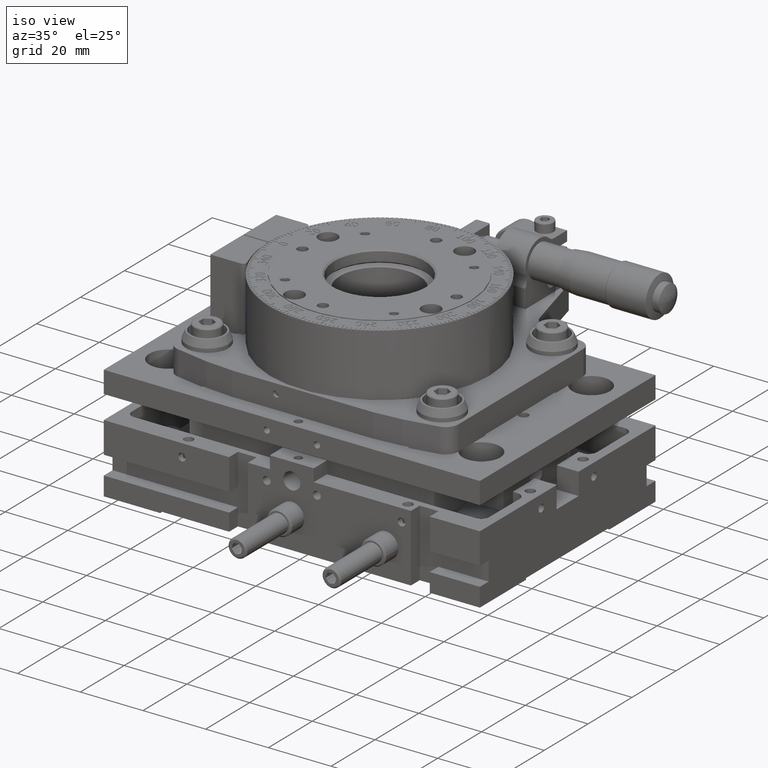
[diagram: clean part render]
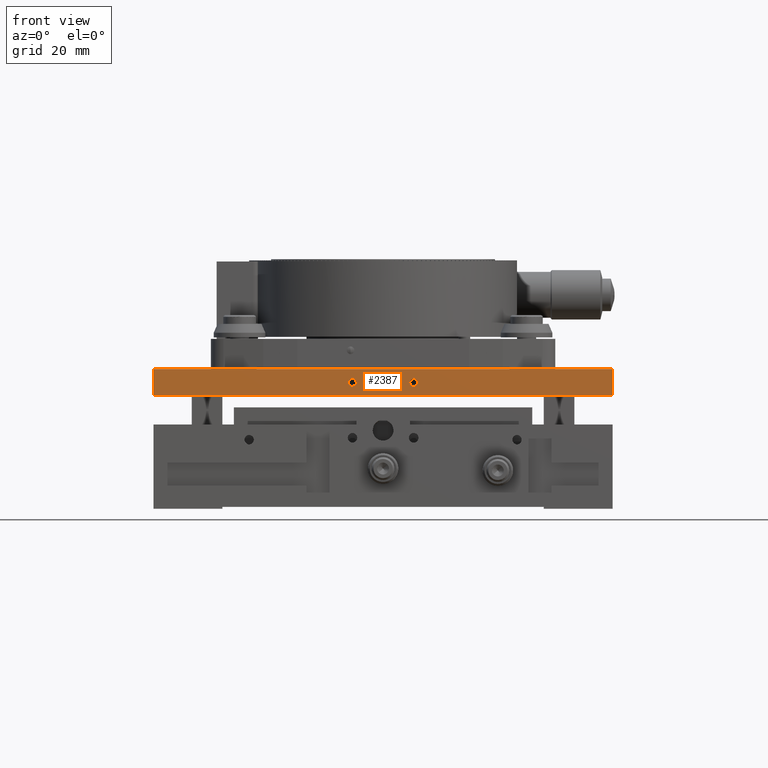
[diagram: tour spotlight — one face highlighted and labeled with its STEP entity id]
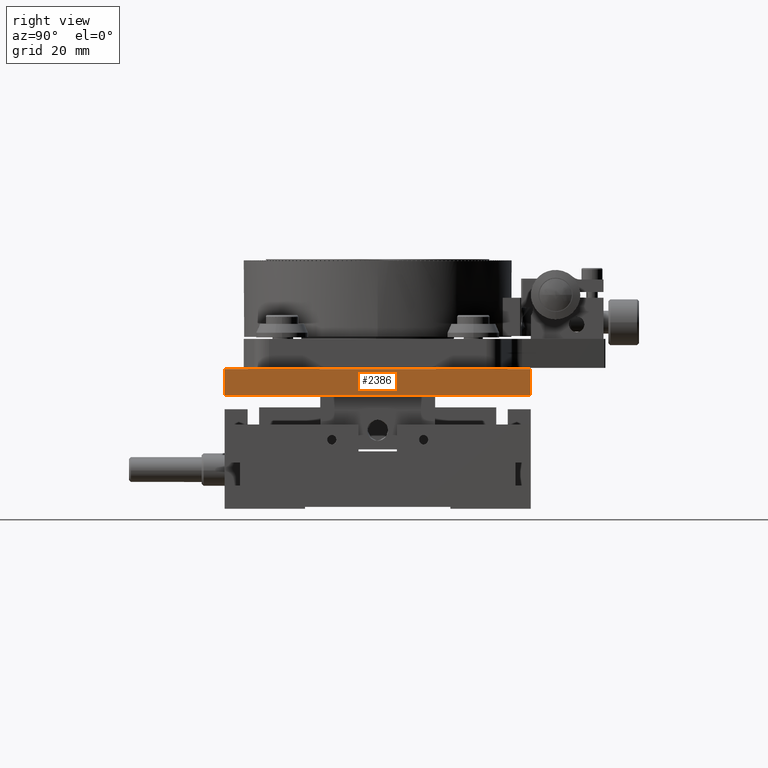
[diagram: tour spotlight — one face highlighted and labeled with its STEP entity id]
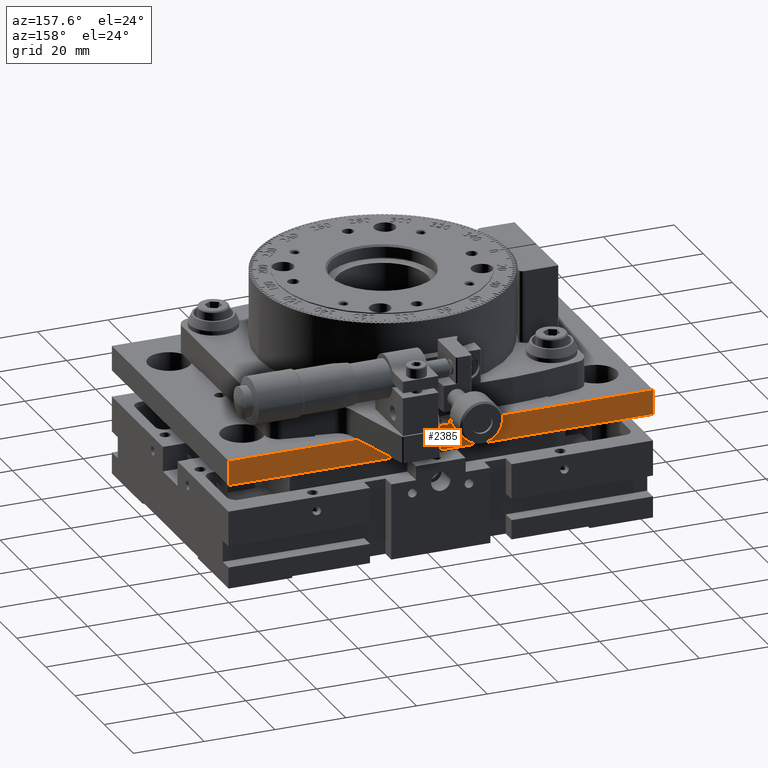
[diagram: tour spotlight — one face highlighted and labeled with its STEP entity id]
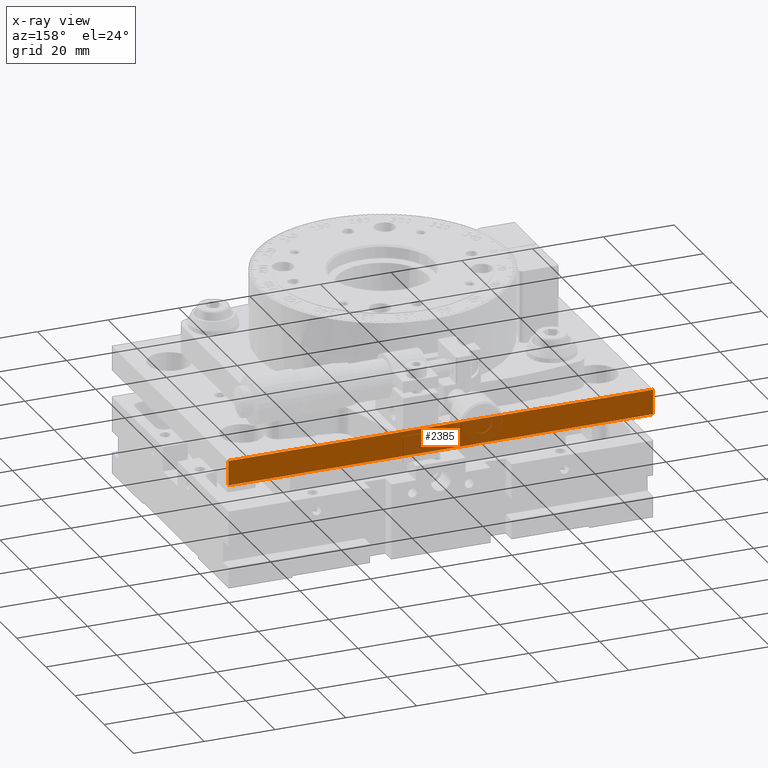
[diagram: x-ray of the same camera — body ghosted, this tour face saturated]
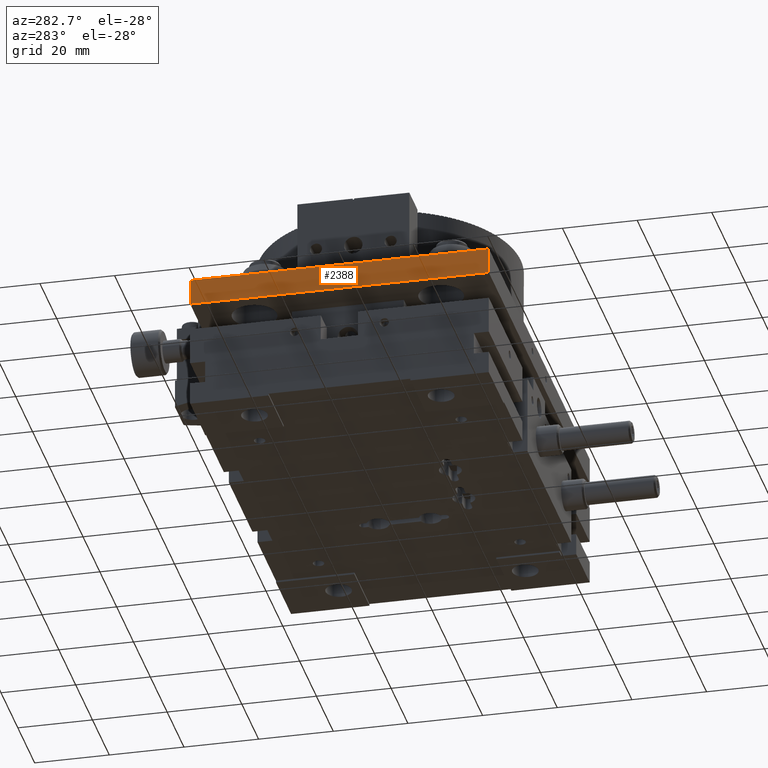
[diagram: tour spotlight — one face highlighted and labeled with its STEP entity id]
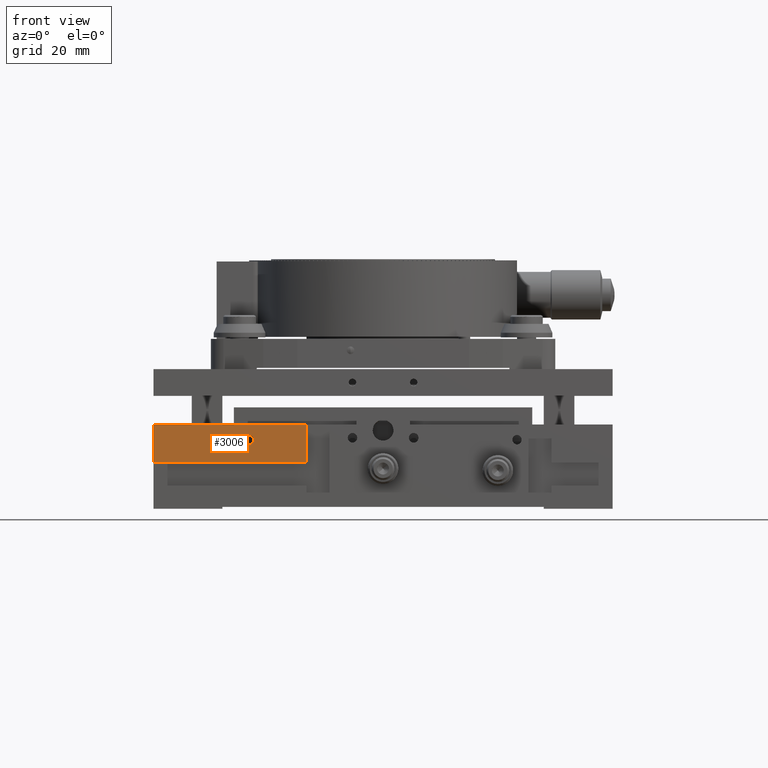
[diagram: tour spotlight — one face highlighted and labeled with its STEP entity id]
A machine part: a face-by-face anatomy tour. The part has 2803 B-rep faces; the first image is the clean iso view, then the 5 largest visible faces are spotlighted one at a time (largest first), each with its STEP entity span.

Face 1 — front view, entity #2387. In plain terms, the highlighted face is a freeform B-spline surface patch.
Definition (entity closure, byte-faithful):
#2387=ADVANCED_FACE('',(#5584,#3475,#3476),#103337,.T.);
#3475=FACE_BOUND('',#8564,.T.);
#3476=FACE_BOUND('',#8565,.T.);
#5584=FACE_OUTER_BOUND('',#8563,.T.);
#8563=EDGE_LOOP('',(#20360,#20361,#20362,#20363));
#8564=EDGE_LOOP('',(#20364,#20365));
#8565=EDGE_LOOP('',(#20366,#20367));
#20360=ORIENTED_EDGE('',*,*,#89469,.F.);
#20361=ORIENTED_EDGE('',*,*,#89563,.F.);
#20362=ORIENTED_EDGE('',*,*,#89564,.T.);
#20363=ORIENTED_EDGE('',*,*,#89565,.T.);
#20364=ORIENTED_EDGE('',*,*,#89566,.T.);
#20365=ORIENTED_EDGE('',*,*,#89567,.T.);
#20366=ORIENTED_EDGE('',*,*,#89568,.T.);
#20367=ORIENTED_EDGE('',*,*,#89569,.T.);
#39639=B_SPLINE_CURVE_WITH_KNOTS('',1,(#165711,#165712),.UNSPECIFIED.,.F.,
 .F.,(2,2),(-120.,0.),.UNSPECIFIED.);
#39640=B_SPLINE_CURVE_WITH_KNOTS('',1,(#165713,#165714),.UNSPECIFIED.,.F.,
 .F.,(2,2),(-120.,0.),.UNSPECIFIED.);
#39670=B_SPLINE_CURVE_WITH_KNOTS('',1,(#166573,#166574),.UNSPECIFIED.,.F.,
 .F.,(2,2),(0.,7.),.UNSPECIFIED.);
#39671=B_SPLINE_CURVE_WITH_KNOTS('',1,(#166575,#166576),.UNSPECIFIED.,.F.,
 .F.,(2,2),(0.,7.),.UNSPECIFIED.);
#39672=B_SPLINE_CURVE_WITH_KNOTS('',1,(#166577,#166578),.UNSPECIFIED.,.F.,
 .F.,(2,2),(-120.,0.),.UNSPECIFIED.);
#39673=B_SPLINE_CURVE_WITH_KNOTS('',1,(#166579,#166580),.UNSPECIFIED.,.F.,
 .F.,(2,2),(0.,7.),.UNSPECIFIED.);
#39674=B_SPLINE_CURVE_WITH_KNOTS('',1,(#166581,#166582),.UNSPECIFIED.,.F.,
 .F.,(2,2),(0.,120.),.UNSPECIFIED.);
#39675=B_SPLINE_CURVE_WITH_KNOTS('',1,(#166583,#166584),.UNSPECIFIED.,.F.,
 .F.,(2,2),(0.,120.),.UNSPECIFIED.);
#39676=B_SPLINE_CURVE_WITH_KNOTS('',1,(#166585,#166586),.UNSPECIFIED.,.F.,
 .F.,(2,2),(0.,7.),.UNSPECIFIED.);
#39677=B_SPLINE_CURVE_WITH_KNOTS('',1,(#166587,#166588),.UNSPECIFIED.,.F.,
 .F.,(2,2),(0.,7.),.UNSPECIFIED.);
#39679=B_SPLINE_CURVE_WITH_KNOTS('',1,(#166631,#166632),.UNSPECIFIED.,.F.,
 .F.,(2,2),(0.,7.),.UNSPECIFIED.);
#40194=B_SPLINE_CURVE_WITH_KNOTS('',1,(#168517,#168518),.UNSPECIFIED.,.F.,
 .F.,(2,2),(0.,3.14159265358979),.UNSPECIFIED.);
#40206=B_SPLINE_CURVE_WITH_KNOTS('',1,(#168569,#168570),.UNSPECIFIED.,.F.,
 .F.,(2,2),(0.,3.14159265358979),.UNSPECIFIED.);
#40250=B_SPLINE_CURVE_WITH_KNOTS('',1,(#168767,#168768),.UNSPECIFIED.,.F.,
 .F.,(2,2),(0.,120.),.UNSPECIFIED.);
#41524=B_SPLINE_CURVE_WITH_KNOTS('',1,(#174518,#174519),.UNSPECIFIED.,.F.,
 .F.,(2,2),(0.,3.14159265358979),.UNSPECIFIED.);
#41532=B_SPLINE_CURVE_WITH_KNOTS('',1,(#174542,#174543),.UNSPECIFIED.,.F.,
 .F.,(2,2),(0.,3.14159265358979),.UNSPECIFIED.);
#55667=PCURVE('',#103334,#71260);
#55764=PCURVE('',#103336,#71357);
#55765=PCURVE('',#103337,#71358);
#55766=PCURVE('',#103337,#71359);
#55767=PCURVE('',#103337,#71360);
#55768=PCURVE('',#103337,#71361);
#55769=PCURVE('',#103337,#71362);
#55770=PCURVE('',#103337,#71363);
#55771=PCURVE('',#103337,#71364);
#55772=PCURVE('',#103337,#71365);
#55774=PCURVE('',#103338,#71367);
#56187=PCURVE('',#101173,#71780);
#56197=PCURVE('',#101175,#71790);
#56243=PCURVE('',#103356,#71836);
#57521=PCURVE('',#101308,#73114);
#57529=PCURVE('',#101310,#73122);
#71260=DEFINITIONAL_REPRESENTATION('',(#39640),#197026);
#71357=DEFINITIONAL_REPRESENTATION('',(#39671),#197026);
#71358=DEFINITIONAL_REPRESENTATION('',(#39672),#197026);
#71359=DEFINITIONAL_REPRESENTATION('',(#39673),#197026);
#71360=DEFINITIONAL_REPRESENTATION('',(#39675),#197026);
#71361=DEFINITIONAL_REPRESENTATION('',(#39677),#197026);
#71362=DEFINITIONAL_REPRESENTATION('',(#93704),#197026);
#71363=DEFINITIONAL_REPRESENTATION('',(#93706),#197026);
#71364=DEFINITIONAL_REPRESENTATION('',(#93708),#197026);
#71365=DEFINITIONAL_REPRESENTATION('',(#93710),#197026);
#71367=DEFINITIONAL_REPRESENTATION('',(#39679),#197026);
#71780=DEFINITIONAL_REPRESENTATION('',(#40194),#197026);
#71790=DEFINITIONAL_REPRESENTATION('',(#40206),#197026);
#71836=DEFINITIONAL_REPRESENTATION('',(#40250),#197026);
#73114=DEFINITIONAL_REPRESENTATION('',(#41524),#197026);
#73122=DEFINITIONAL_REPRESENTATION('',(#41532),#197026);
#81611=SURFACE_CURVE('',#39639,(#55667,#55765),.PCURVE_S1.);
#81705=SURFACE_CURVE('',#39670,(#55764,#55766),.PCURVE_S1.);
#81706=SURFACE_CURVE('',#39674,(#55767,#56243),.PCURVE_S1.);
#81707=SURFACE_CURVE('',#39676,(#55768,#55774),.PCURVE_S1.);
#81708=SURFACE_CURVE('',#93703,(#55769,#57529),.PCURVE_S1.);
#81709=SURFACE_CURVE('',#93705,(#55770,#56197),.PCURVE_S1.);
#81710=SURFACE_CURVE('',#93707,(#55771,#57521),.PCURVE_S1.);
#81711=SURFACE_CURVE('',#93709,(#55772,#56187),.PCURVE_S1.);
#89469=EDGE_CURVE('',#99207,#99205,#81611,.T.);
#89563=EDGE_CURVE('',#99298,#99207,#81705,.T.);
#89564=EDGE_CURVE('',#99298,#99299,#81706,.T.);
#89565=EDGE_CURVE('',#99299,#99205,#81707,.T.);
#89566=EDGE_CURVE('',#99301,#99300,#81708,.T.);
#89567=EDGE_CURVE('',#99300,#99301,#81709,.T.);
#89568=EDGE_CURVE('',#99303,#99302,#81710,.T.);
#89569=EDGE_CURVE('',#99302,#99303,#81711,.T.);
#93703=(
BOUNDED_CURVE()
B_SPLINE_CURVE(2,(#166589,#166590,#166591,#166592,#166593),
 .UNSPECIFIED.,.F.,.F.)
B_SPLINE_CURVE_WITH_KNOTS((3,2,3),(0.,1.5707963267949,3.14159265358979),
 .UNSPECIFIED.)
CURVE()
GEOMETRIC_REPRESENTATION_ITEM()
RATIONAL_B_SPLINE_CURVE((1.,0.707106781186548,1.,0.707106781186548,1.))
REPRESENTATION_ITEM('')
);
#93704=(
BOUNDED_CURVE()
B_SPLINE_CURVE(2,(#166594,#166595,#166596,#166597,#166598),
 .UNSPECIFIED.,.F.,.F.)
B_SPLINE_CURVE_WITH_KNOTS((3,2,3),(0.,1.5707963267949,3.14159265358979),
 .UNSPECIFIED.)
CURVE()
GEOMETRIC_REPRESENTATION_ITEM()
RATIONAL_B_SPLINE_CURVE((1.,0.707106781186548,1.,0.707106781186548,1.))
REPRESENTATION_ITEM('')
);
#93705=(
BOUNDED_CURVE()
B_SPLINE_CURVE(2,(#166599,#166600,#166601,#166602,#166603),
 .UNSPECIFIED.,.F.,.F.)
B_SPLINE_CURVE_WITH_KNOTS((3,2,3),(0.,1.5707963267949,3.14159265358979),
 .UNSPECIFIED.)
CURVE()
GEOMETRIC_REPRESENTATION_ITEM()
RATIONAL_B_SPLINE_CURVE((1.,0.707106781186548,1.,0.707106781186548,1.))
REPRESENTATION_ITEM('')
);
#93706=(
BOUNDED_CURVE()
B_SPLINE_CURVE(2,(#166604,#166605,#166606,#166607,#166608),
 .UNSPECIFIED.,.F.,.F.)
B_SPLINE_CURVE_WITH_KNOTS((3,2,3),(0.,1.5707963267949,3.14159265358979),
 .UNSPECIFIED.)
CURVE()
GEOMETRIC_REPRESENTATION_ITEM()
RATIONAL_B_SPLINE_CURVE((1.,0.707106781186548,1.,0.707106781186548,1.))
REPRESENTATION_ITEM('')
);
#93707=(
BOUNDED_CURVE()
B_SPLINE_CURVE(2,(#166609,#166610,#166611,#166612,#166613),
 .UNSPECIFIED.,.F.,.F.)
B_SPLINE_CURVE_WITH_KNOTS((3,2,3),(0.,1.5707963267949,3.14159265358979),
 .UNSPECIFIED.)
CURVE()
GEOMETRIC_REPRESENTATION_ITEM()
RATIONAL_B_SPLINE_CURVE((1.,0.707106781186548,1.,0.707106781186548,1.))
REPRESENTATION_ITEM('')
);
#93708=(
BOUNDED_CURVE()
B_SPLINE_CURVE(2,(#166614,#166615,#166616,#166617,#166618),
 .UNSPECIFIED.,.F.,.F.)
B_SPLINE_CURVE_WITH_KNOTS((3,2,3),(0.,1.5707963267949,3.14159265358979),
 .UNSPECIFIED.)
CURVE()
GEOMETRIC_REPRESENTATION_ITEM()
RATIONAL_B_SPLINE_CURVE((1.,0.707106781186548,1.,0.707106781186548,1.))
REPRESENTATION_ITEM('')
);
#93709=(
BOUNDED_CURVE()
B_SPLINE_CURVE(2,(#166619,#166620,#166621,#166622,#166623),
 .UNSPECIFIED.,.F.,.F.)
B_SPLINE_CURVE_WITH_KNOTS((3,2,3),(0.,1.5707963267949,3.14159265358979),
 .UNSPECIFIED.)
CURVE()
GEOMETRIC_REPRESENTATION_ITEM()
RATIONAL_B_SPLINE_CURVE((1.,0.707106781186548,1.,0.707106781186548,1.))
REPRESENTATION_ITEM('')
);
#93710=(
BOUNDED_CURVE()
B_SPLINE_CURVE(2,(#166624,#166625,#166626,#166627,#166628),
 .UNSPECIFIED.,.F.,.F.)
B_SPLINE_CURVE_WITH_KNOTS((3,2,3),(0.,1.5707963267949,3.14159265358979),
 .UNSPECIFIED.)
CURVE()
GEOMETRIC_REPRESENTATION_ITEM()
RATIONAL_B_SPLINE_CURVE((1.,0.707106781186548,1.,0.707106781186548,1.))
REPRESENTATION_ITEM('')
);
#99205=VERTEX_POINT('',#164651);
#99207=VERTEX_POINT('',#164653);
#99298=VERTEX_POINT('',#164744);
#99299=VERTEX_POINT('',#164745);
#99300=VERTEX_POINT('',#164746);
#99301=VERTEX_POINT('',#164747);
#99302=VERTEX_POINT('',#164748);
#99303=VERTEX_POINT('',#164749);
#101173=(
BOUNDED_SURFACE()
B_SPLINE_SURFACE(1,2,((#161647,#161648,#161649,#161650,#161651),(#161652,
#161653,#161654,#161655,#161656)),.UNSPECIFIED.,.F.,.F.,.F.)
B_SPLINE_SURFACE_WITH_KNOTS((2,2),(3,2,3),(0.,23.2458874503046),(0.,1.5707963267949,
3.14159265358979),.UNSPECIFIED.)
GEOMETRIC_REPRESENTATION_ITEM()
RATIONAL_B_SPLINE_SURFACE(((1.,0.707106781186548,1.,0.707106781186548,1.),
(1.,0.707106781186548,1.,0.707106781186548,1.)))
REPRESENTATION_ITEM('')
SURFACE()
);
#101175=(
BOUNDED_SURFACE()
B_SPLINE_SURFACE(1,2,((#161671,#161672,#161673,#161674,#161675),(#161676,
#161677,#161678,#161679,#161680)),.UNSPECIFIED.,.F.,.F.,.F.)
B_SPLINE_SURFACE_WITH_KNOTS((2,2),(3,2,3),(0.,23.2458874503046),(0.,1.5707963267949,
3.14159265358979),.UNSPECIFIED.)
GEOMETRIC_REPRESENTATION_ITEM()
RATIONAL_B_SPLINE_SURFACE(((1.,0.707106781186548,1.,0.707106781186548,1.),
(1.,0.707106781186548,1.,0.707106781186548,1.)))
REPRESENTATION_ITEM('')
SURFACE()
);
#101308=(
BOUNDED_SURFACE()
B_SPLINE_SURFACE(1,2,((#164278,#164279,#164280,#164281,#164282),(#164283,
#164284,#164285,#164286,#164287)),.UNSPECIFIED.,.F.,.F.,.F.)
B_SPLINE_SURFACE_WITH_KNOTS((2,2),(3,2,3),(0.,23.2458874503046),(3.14159265358979,
4.71238898038469,6.28318530717959),.UNSPECIFIED.)
GEOMETRIC_REPRESENTATION_ITEM()
RATIONAL_B_SPLINE_SURFACE(((1.,0.707106781186548,1.,0.707106781186548,1.),
(1.,0.707106781186548,1.,0.707106781186548,1.)))
REPRESENTATION_ITEM('')
SURFACE()
);
#101310=(
BOUNDED_SURFACE()
B_SPLINE_SURFACE(1,2,((#164298,#164299,#164300,#164301,#164302),(#164303,
#164304,#164305,#164306,#164307)),.UNSPECIFIED.,.F.,.F.,.F.)
B_SPLINE_SURFACE_WITH_KNOTS((2,2),(3,2,3),(0.,23.2458874503046),(3.14159265358979,
4.71238898038469,6.28318530717959),.UNSPECIFIED.)
GEOMETRIC_REPRESENTATION_ITEM()
RATIONAL_B_SPLINE_SURFACE(((1.,0.707106781186548,1.,0.707106781186548,1.),
(1.,0.707106781186548,1.,0.707106781186548,1.)))
REPRESENTATION_ITEM('')
SURFACE()
);
#103334=B_SPLINE_SURFACE_WITH_KNOTS('',1,1,((#160071,#160072),(#160073,
#160074)),.UNSPECIFIED.,.F.,.F.,.F.,(2,2),(2,2),(-48.1200000000001,48.1200000000002),
(-72.1200000000001,72.12),.UNSPECIFIED.);
#103336=B_SPLINE_SURFACE_WITH_KNOTS('',1,1,((#160079,#160080),(#160081,
#160082)),.UNSPECIFIED.,.F.,.F.,.F.,(2,2),(2,2),(-0.820000000000002,7.82),
(-8.12,88.1200000000001),.UNSPECIFIED.);
#103337=B_SPLINE_SURFACE_WITH_KNOTS('',1,1,((#160083,#160084),(#160085,
#160086)),.UNSPECIFIED.,.F.,.F.,.F.,(2,2),(2,2),(-0.820000000000115,7.82000000000006),
(-12.12,132.12),.UNSPECIFIED.);
#103338=B_SPLINE_SURFACE_WITH_KNOTS('',1,1,((#160087,#160088),(#160089,
#160090)),.UNSPECIFIED.,.F.,.F.,.F.,(2,2),(2,2),(-7.82,0.820000000000002),
(-88.12,8.12),.UNSPECIFIED.);
#103356=B_SPLINE_SURFACE_WITH_KNOTS('',1,1,((#161783,#161784),(#161785,
#161786)),.UNSPECIFIED.,.F.,.F.,.F.,(2,2),(2,2),(-72.1200000000001,72.12),
(-48.1200000000001,48.1200000000002),.UNSPECIFIED.);
#160071=CARTESIAN_POINT('',(-12.1200000000001,-109.172822561578,28.9999999999999));
#160072=CARTESIAN_POINT('',(132.12,-109.172822561578,28.9999999999999));
#160073=CARTESIAN_POINT('',(-12.1200000000001,-12.9328225615779,28.9999999999999));
#160074=CARTESIAN_POINT('',(132.12,-12.9328225615778,28.9999999999999));
#160079=CARTESIAN_POINT('',(120.,-109.172822561578,36.82));
#160080=CARTESIAN_POINT('',(120.,-12.9328225615779,36.82));
#160081=CARTESIAN_POINT('',(120.,-109.172822561578,28.18));
#160082=CARTESIAN_POINT('',(120.,-12.9328225615779,28.18));
#160083=CARTESIAN_POINT('',(-12.12,-101.052822561578,36.82));
#160084=CARTESIAN_POINT('',(132.12,-101.052822561578,36.8200000000001));
#160085=CARTESIAN_POINT('',(-12.12,-101.052822561578,28.1799999999998));
#160086=CARTESIAN_POINT('',(132.12,-101.052822561578,28.1799999999999));
#160087=CARTESIAN_POINT('',(8.71297707701195E-15,-109.172822561578,28.1799999999999));
#160088=CARTESIAN_POINT('',(-6.44110297726557E-14,-12.932822561578,28.1799999999999));
#160089=CARTESIAN_POINT('',(5.6473020796724E-15,-109.172822561578,36.8199999999999));
#160090=CARTESIAN_POINT('',(-6.74767047699953E-14,-12.932822561578,36.8199999999999));
#161647=CARTESIAN_POINT('',(67.,-79.8440923987988,32.4999999999999));
#161648=CARTESIAN_POINT('',(67.,-79.8440923987988,31.4999999999999));
#161649=CARTESIAN_POINT('',(68.,-79.8440923987988,31.4999999999999));
#161650=CARTESIAN_POINT('',(69.,-79.8440923987988,31.4999999999999));
#161651=CARTESIAN_POINT('',(69.,-79.8440923987988,32.4999999999999));
#161652=CARTESIAN_POINT('',(67.,-103.089979849103,32.4999999999999));
#161653=CARTESIAN_POINT('',(67.,-103.089979849103,31.4999999999999));
#161654=CARTESIAN_POINT('',(68.,-103.089979849103,31.4999999999999));
#161655=CARTESIAN_POINT('',(69.,-103.089979849103,31.4999999999999));
#161656=CARTESIAN_POINT('',(69.,-103.089979849103,32.4999999999999));
#161671=CARTESIAN_POINT('',(51.,-79.8440923987988,32.4999999999999));
#161672=CARTESIAN_POINT('',(51.,-79.8440923987988,31.4999999999999));
#161673=CARTESIAN_POINT('',(52.,-79.8440923987988,31.4999999999999));
#161674=CARTESIAN_POINT('',(53.,-79.8440923987988,31.4999999999999));
#161675=CARTESIAN_POINT('',(53.,-79.8440923987988,32.4999999999999));
#161676=CARTESIAN_POINT('',(51.,-103.089979849103,32.4999999999999));
#161677=CARTESIAN_POINT('',(51.,-103.089979849103,31.4999999999999));
#161678=CARTESIAN_POINT('',(52.,-103.089979849103,31.4999999999999));
#161679=CARTESIAN_POINT('',(53.,-103.089979849103,31.4999999999999));
#161680=CARTESIAN_POINT('',(53.,-103.089979849103,32.4999999999999));
#161783=CARTESIAN_POINT('',(-12.1200000000001,-109.172822561578,35.9999999999999));
#161784=CARTESIAN_POINT('',(-12.1200000000001,-12.9328225615779,35.9999999999999));
#161785=CARTESIAN_POINT('',(132.12,-109.172822561578,35.9999999999999));
#161786=CARTESIAN_POINT('',(132.12,-12.9328225615778,35.9999999999999));
#164278=CARTESIAN_POINT('',(69.,-79.8440923987988,32.4999999999999));
#164279=CARTESIAN_POINT('',(69.,-79.8440923987988,33.4999999999999));
#164280=CARTESIAN_POINT('',(68.,-79.8440923987988,33.4999999999999));
#164281=CARTESIAN_POINT('',(67.,-79.8440923987988,33.4999999999999));
#164282=CARTESIAN_POINT('',(67.,-79.8440923987988,32.4999999999999));
#164283=CARTESIAN_POINT('',(69.,-103.089979849103,32.4999999999999));
#164284=CARTESIAN_POINT('',(69.,-103.089979849103,33.4999999999999));
#164285=CARTESIAN_POINT('',(68.,-103.089979849103,33.4999999999999));
#164286=CARTESIAN_POINT('',(67.,-103.089979849103,33.4999999999999));
#164287=CARTESIAN_POINT('',(67.,-103.089979849103,32.4999999999999));
#164298=CARTESIAN_POINT('',(53.,-79.8440923987988,32.4999999999999));
#164299=CARTESIAN_POINT('',(53.,-79.8440923987988,33.4999999999999));
#164300=CARTESIAN_POINT('',(52.,-79.8440923987988,33.4999999999999));
#164301=CARTESIAN_POINT('',(51.,-79.8440923987988,33.4999999999999));
#164302=CARTESIAN_POINT('',(51.,-79.8440923987988,32.4999999999999));
#164303=CARTESIAN_POINT('',(53.,-103.089979849103,32.4999999999999));
#164304=CARTESIAN_POINT('',(53.,-103.089979849103,33.4999999999999));
#164305=CARTESIAN_POINT('',(52.,-103.089979849103,33.4999999999999));
#164306=CARTESIAN_POINT('',(51.,-103.089979849103,33.4999999999999));
#164307=CARTESIAN_POINT('',(51.,-103.089979849103,32.4999999999999));
#164651=CARTESIAN_POINT('',(4.37534301814723E-15,-101.052822561578,28.9999999999999));
#164653=CARTESIAN_POINT('',(120.,-101.052822561578,29.));
#164744=CARTESIAN_POINT('',(120.,-101.052822561578,36.));
#164745=CARTESIAN_POINT('',(-1.18953004206581E-15,-101.052822561578,35.9999999999999));
#164746=CARTESIAN_POINT('',(53.,-101.052822561578,32.4999999999999));
#164747=CARTESIAN_POINT('',(51.,-101.052822561578,32.4999999999999));
#164748=CARTESIAN_POINT('',(69.,-101.052822561578,32.4999999999999));
#164749=CARTESIAN_POINT('',(67.,-101.052822561578,32.4999999999999));
#165711=CARTESIAN_POINT('',(120.,-101.052822561578,29.));
#165712=CARTESIAN_POINT('',(4.37534301814723E-15,-101.052822561578,28.9999999999999));
#165713=CARTESIAN_POINT('',(-40.,60.));
#165714=CARTESIAN_POINT('',(-40.,-60.));
#166573=CARTESIAN_POINT('',(120.,-101.052822561578,36.));
#166574=CARTESIAN_POINT('',(120.,-101.052822561578,29.));
#166575=CARTESIAN_POINT('',(0.,0.));
#166576=CARTESIAN_POINT('',(7.,6.80591192663364E-31));
#166577=CARTESIAN_POINT('',(6.99999999999994,120.));
#166578=CARTESIAN_POINT('',(7.,-2.76101316827354E-30));
#166579=CARTESIAN_POINT('',(-5.68971635989203E-14,120.));
#166580=CARTESIAN_POINT('',(6.99999999999994,120.));
#166581=CARTESIAN_POINT('',(120.,-101.052822561578,36.));
#166582=CARTESIAN_POINT('',(-1.18953004206581E-15,-101.052822561578,35.9999999999999));
#166583=CARTESIAN_POINT('',(-5.68971635989203E-14,120.));
#166584=CARTESIAN_POINT('',(2.44918085570065E-46,6.90253292068385E-31));
#166585=CARTESIAN_POINT('',(-1.18953004206581E-15,-101.052822561578,35.9999999999999));
#166586=CARTESIAN_POINT('',(4.37534301814723E-15,-101.052822561578,28.9999999999999));
#166587=CARTESIAN_POINT('',(2.44918085570065E-46,6.90253292068385E-31));
#166588=CARTESIAN_POINT('',(7.,-2.76101316827354E-30));
#166589=CARTESIAN_POINT('',(51.,-101.052822561578,32.4999999999999));
#166590=CARTESIAN_POINT('',(51.,-101.052822561578,33.4999999999999));
#166591=CARTESIAN_POINT('',(52.,-101.052822561578,33.4999999999999));
#166592=CARTESIAN_POINT('',(53.,-101.052822561578,33.4999999999999));
#166593=CARTESIAN_POINT('',(53.,-101.052822561578,32.4999999999999));
#166594=CARTESIAN_POINT('',(3.50000000000002,51.));
#166595=CARTESIAN_POINT('',(2.50000000000002,51.));
#166596=CARTESIAN_POINT('',(2.50000000000002,52.));
#166597=CARTESIAN_POINT('',(2.50000000000002,53.));
#166598=CARTESIAN_POINT('',(3.50000000000002,53.));
#166599=CARTESIAN_POINT('',(53.,-101.052822561578,32.4999999999999));
#166600=CARTESIAN_POINT('',(53.,-101.052822561578,31.4999999999999));
#166601=CARTESIAN_POINT('',(52.,-101.052822561578,31.4999999999999));
#166602=CARTESIAN_POINT('',(51.,-101.052822561578,31.4999999999999));
#166603=CARTESIAN_POINT('',(51.,-101.052822561578,32.4999999999999));
#166604=CARTESIAN_POINT('',(3.50000000000002,53.));
#166605=CARTESIAN_POINT('',(4.50000000000002,53.));
#166606=CARTESIAN_POINT('',(4.50000000000002,52.));
#166607=CARTESIAN_POINT('',(4.50000000000002,51.));
#166608=CARTESIAN_POINT('',(3.50000000000002,51.));
#166609=CARTESIAN_POINT('',(67.,-101.052822561578,32.4999999999999));
#166610=CARTESIAN_POINT('',(67.,-101.052822561578,33.4999999999999));
#166611=CARTESIAN_POINT('',(68.,-101.052822561578,33.4999999999999));
#166612=CARTESIAN_POINT('',(69.,-101.052822561578,33.4999999999999));
#166613=CARTESIAN_POINT('',(69.,-101.052822561578,32.4999999999999));
#166614=CARTESIAN_POINT('',(3.50000000000002,67.));
#166615=CARTESIAN_POINT('',(2.50000000000003,67.));
#166616=CARTESIAN_POINT('',(2.50000000000002,68.));
#166617=CARTESIAN_POINT('',(2.50000000000003,69.));
#166618=CARTESIAN_POINT('',(3.50000000000002,69.));
#166619=CARTESIAN_POINT('',(69.,-101.052822561578,32.4999999999999));
#166620=CARTESIAN_POINT('',(69.,-101.052822561578,31.4999999999999));
#166621=CARTESIAN_POINT('',(68.,-101.052822561578,31.4999999999999));
#166622=CARTESIAN_POINT('',(67.,-101.052822561578,31.4999999999999));
#166623=CARTESIAN_POINT('',(67.,-101.052822561578,32.4999999999999));
#166624=CARTESIAN_POINT('',(3.50000000000002,69.));
#166625=CARTESIAN_POINT('',(4.50000000000003,69.));
#166626=CARTESIAN_POINT('',(4.50000000000002,68.));
#166627=CARTESIAN_POINT('',(4.50000000000003,67.));
#166628=CARTESIAN_POINT('',(3.50000000000002,67.));
#166631=CARTESIAN_POINT('',(-7.77818505900987E-30,-80.));
#166632=CARTESIAN_POINT('',(-7.,-80.));
#168517=CARTESIAN_POINT('',(21.2087301627792,3.14159265358979));
#168518=CARTESIAN_POINT('',(21.2087301627792,0.));
#168569=CARTESIAN_POINT('',(21.2087301627792,3.14159265358979));
#168570=CARTESIAN_POINT('',(21.2087301627792,0.));
#168767=CARTESIAN_POINT('',(60.,-40.));
#168768=CARTESIAN_POINT('',(-60.,-40.));
#174518=CARTESIAN_POINT('',(21.2087301627792,6.28318530717959));
#174519=CARTESIAN_POINT('',(21.2087301627792,3.14159265358979));
#174542=CARTESIAN_POINT('',(21.2087301627792,6.28318530717959));
#174543=CARTESIAN_POINT('',(21.2087301627792,3.14159265358979));
#197026=(
GEOMETRIC_REPRESENTATION_CONTEXT(2)
PARAMETRIC_REPRESENTATION_CONTEXT()
REPRESENTATION_CONTEXT('pspace','')
);

Face 2 — right view, entity #2386. In plain terms, the highlighted face is a freeform B-spline surface patch.
Definition (entity closure, byte-faithful):
#2386=ADVANCED_FACE('',(#5583),#103336,.T.);
#5583=FACE_OUTER_BOUND('',#8562,.T.);
#8562=EDGE_LOOP('',(#20356,#20357,#20358,#20359));
#20356=ORIENTED_EDGE('',*,*,#89468,.F.);
#20357=ORIENTED_EDGE('',*,*,#89561,.F.);
#20358=ORIENTED_EDGE('',*,*,#89562,.T.);
#20359=ORIENTED_EDGE('',*,*,#89563,.T.);
#39637=B_SPLINE_CURVE_WITH_KNOTS('',1,(#165707,#165708),.UNSPECIFIED.,.F.,
 .F.,(2,2),(-80.0000000000001,0.),.UNSPECIFIED.);
#39638=B_SPLINE_CURVE_WITH_KNOTS('',1,(#165709,#165710),.UNSPECIFIED.,.F.,
 .F.,(2,2),(-80.0000000000001,0.),.UNSPECIFIED.);
#39664=B_SPLINE_CURVE_WITH_KNOTS('',1,(#166561,#166562),.UNSPECIFIED.,.F.,
 .F.,(2,2),(0.,7.),.UNSPECIFIED.);
#39665=B_SPLINE_CURVE_WITH_KNOTS('',1,(#166563,#166564),.UNSPECIFIED.,.F.,
 .F.,(2,2),(0.,7.),.UNSPECIFIED.);
#39666=B_SPLINE_CURVE_WITH_KNOTS('',1,(#166565,#166566),.UNSPECIFIED.,.F.,
 .F.,(2,2),(-80.0000000000001,0.),.UNSPECIFIED.);
#39667=B_SPLINE_CURVE_WITH_KNOTS('',1,(#166567,#166568),.UNSPECIFIED.,.F.,
 .F.,(2,2),(0.,7.),.UNSPECIFIED.);
#39668=B_SPLINE_CURVE_WITH_KNOTS('',1,(#166569,#166570),.UNSPECIFIED.,.F.,
 .F.,(2,2),(0.,80.0000000000001),.UNSPECIFIED.);
#39669=B_SPLINE_CURVE_WITH_KNOTS('',1,(#166571,#166572),.UNSPECIFIED.,.F.,
 .F.,(2,2),(0.,80.0000000000001),.UNSPECIFIED.);
#39670=B_SPLINE_CURVE_WITH_KNOTS('',1,(#166573,#166574),.UNSPECIFIED.,.F.,
 .F.,(2,2),(0.,7.),.UNSPECIFIED.);
#39671=B_SPLINE_CURVE_WITH_KNOTS('',1,(#166575,#166576),.UNSPECIFIED.,.F.,
 .F.,(2,2),(0.,7.),.UNSPECIFIED.);
#39673=B_SPLINE_CURVE_WITH_KNOTS('',1,(#166579,#166580),.UNSPECIFIED.,.F.,
 .F.,(2,2),(0.,7.),.UNSPECIFIED.);
#40251=B_SPLINE_CURVE_WITH_KNOTS('',1,(#168769,#168770),.UNSPECIFIED.,.F.,
 .F.,(2,2),(0.,80.0000000000001),.UNSPECIFIED.);
#55666=PCURVE('',#103334,#71259);
#55760=PCURVE('',#103335,#71353);
#55761=PCURVE('',#103336,#71354);
#55762=PCURVE('',#103336,#71355);
#55763=PCURVE('',#103336,#71356);
#55764=PCURVE('',#103336,#71357);
#55766=PCURVE('',#103337,#71359);
#56244=PCURVE('',#103356,#71837);
#71259=DEFINITIONAL_REPRESENTATION('',(#39638),#197026);
#71353=DEFINITIONAL_REPRESENTATION('',(#39665),#197026);
#71354=DEFINITIONAL_REPRESENTATION('',(#39666),#197026);
#71355=DEFINITIONAL_REPRESENTATION('',(#39667),#197026);
#71356=DEFINITIONAL_REPRESENTATION('',(#39669),#197026);
#71357=DEFINITIONAL_REPRESENTATION('',(#39671),#197026);
#71359=DEFINITIONAL_REPRESENTATION('',(#39673),#197026);
#71837=DEFINITIONAL_REPRESENTATION('',(#40251),#197026);
#81610=SURFACE_CURVE('',#39637,(#55666,#55761),.PCURVE_S1.);
#81703=SURFACE_CURVE('',#39664,(#55760,#55762),.PCURVE_S1.);
#81704=SURFACE_CURVE('',#39668,(#55763,#56244),.PCURVE_S1.);
#81705=SURFACE_CURVE('',#39670,(#55764,#55766),.PCURVE_S1.);
#89468=EDGE_CURVE('',#99206,#99207,#81610,.T.);
#89561=EDGE_CURVE('',#99297,#99206,#81703,.T.);
#89562=EDGE_CURVE('',#99297,#99298,#81704,.T.);
#89563=EDGE_CURVE('',#99298,#99207,#81705,.T.);
#99206=VERTEX_POINT('',#164652);
#99207=VERTEX_POINT('',#164653);
#99297=VERTEX_POINT('',#164743);
#99298=VERTEX_POINT('',#164744);
#103334=B_SPLINE_SURFACE_WITH_KNOTS('',1,1,((#160071,#160072),(#160073,
#160074)),.UNSPECIFIED.,.F.,.F.,.F.,(2,2),(2,2),(-48.1200000000001,48.1200000000002),
(-72.1200000000001,72.12),.UNSPECIFIED.);
#103335=B_SPLINE_SURFACE_WITH_KNOTS('',1,1,((#160075,#160076),(#160077,
#160078)),.UNSPECIFIED.,.F.,.F.,.F.,(2,2),(2,2),(-7.82000000000012,0.820000000000059),
(-132.12,12.12),.UNSPECIFIED.);
#103336=B_SPLINE_SURFACE_WITH_KNOTS('',1,1,((#160079,#160080),(#160081,
#160082)),.UNSPECIFIED.,.F.,.F.,.F.,(2,2),(2,2),(-0.820000000000002,7.82),
(-8.12,88.1200000000001),.UNSPECIFIED.);
#103337=B_SPLINE_SURFACE_WITH_KNOTS('',1,1,((#160083,#160084),(#160085,
#160086)),.UNSPECIFIED.,.F.,.F.,.F.,(2,2),(2,2),(-0.820000000000115,7.82000000000006),
(-12.12,132.12),.UNSPECIFIED.);
#103356=B_SPLINE_SURFACE_WITH_KNOTS('',1,1,((#161783,#161784),(#161785,
#161786)),.UNSPECIFIED.,.F.,.F.,.F.,(2,2),(2,2),(-72.1200000000001,72.12),
(-48.1200000000001,48.1200000000002),.UNSPECIFIED.);
#160071=CARTESIAN_POINT('',(-12.1200000000001,-109.172822561578,28.9999999999999));
#160072=CARTESIAN_POINT('',(132.12,-109.172822561578,28.9999999999999));
#160073=CARTESIAN_POINT('',(-12.1200000000001,-12.9328225615779,28.9999999999999));
#160074=CARTESIAN_POINT('',(132.12,-12.9328225615778,28.9999999999999));
#160075=CARTESIAN_POINT('',(-12.1200000000001,-21.052822561578,28.1799999999998));
#160076=CARTESIAN_POINT('',(132.12,-21.0528225615779,28.1799999999999));
#160077=CARTESIAN_POINT('',(-12.1200000000001,-21.052822561578,36.82));
#160078=CARTESIAN_POINT('',(132.12,-21.0528225615779,36.8200000000001));
#160079=CARTESIAN_POINT('',(120.,-109.172822561578,36.82));
#160080=CARTESIAN_POINT('',(120.,-12.9328225615779,36.82));
#160081=CARTESIAN_POINT('',(120.,-109.172822561578,28.18));
#160082=CARTESIAN_POINT('',(120.,-12.9328225615779,28.18));
#160083=CARTESIAN_POINT('',(-12.12,-101.052822561578,36.82));
#160084=CARTESIAN_POINT('',(132.12,-101.052822561578,36.8200000000001));
#160085=CARTESIAN_POINT('',(-12.12,-101.052822561578,28.1799999999998));
#160086=CARTESIAN_POINT('',(132.12,-101.052822561578,28.1799999999999));
#161783=CARTESIAN_POINT('',(-12.1200000000001,-109.172822561578,35.9999999999999));
#161784=CARTESIAN_POINT('',(-12.1200000000001,-12.9328225615779,35.9999999999999));
#161785=CARTESIAN_POINT('',(132.12,-109.172822561578,35.9999999999999));
#161786=CARTESIAN_POINT('',(132.12,-12.9328225615778,35.9999999999999));
#164652=CARTESIAN_POINT('',(120.,-21.0528225615779,29.));
#164653=CARTESIAN_POINT('',(120.,-101.052822561578,29.));
#164743=CARTESIAN_POINT('',(120.,-21.0528225615779,36.));
#164744=CARTESIAN_POINT('',(120.,-101.052822561578,36.));
#165707=CARTESIAN_POINT('',(120.,-21.0528225615779,29.));
#165708=CARTESIAN_POINT('',(120.,-101.052822561578,29.));
#165709=CARTESIAN_POINT('',(40.0000000000001,60.));
#165710=CARTESIAN_POINT('',(-40.,60.));
#166561=CARTESIAN_POINT('',(120.,-21.0528225615779,36.));
#166562=CARTESIAN_POINT('',(120.,-21.0528225615779,29.));
#166563=CARTESIAN_POINT('',(0.,0.));
#166564=CARTESIAN_POINT('',(-7.,-2.48376446543714E-15));
#166565=CARTESIAN_POINT('',(7.,80.0000000000001));
#166566=CARTESIAN_POINT('',(7.,6.80591192663364E-31));
#166567=CARTESIAN_POINT('',(-1.14220672875506E-29,80.0000000000001));
#166568=CARTESIAN_POINT('',(7.,80.0000000000001));
#166569=CARTESIAN_POINT('',(120.,-21.0528225615779,36.));
#166570=CARTESIAN_POINT('',(120.,-101.052822561578,36.));
#166571=CARTESIAN_POINT('',(-1.14220672875506E-29,80.0000000000001));
#166572=CARTESIAN_POINT('',(0.,0.));
#166573=CARTESIAN_POINT('',(120.,-101.052822561578,36.));
#166574=CARTESIAN_POINT('',(120.,-101.052822561578,29.));
#166575=CARTESIAN_POINT('',(0.,0.));
#166576=CARTESIAN_POINT('',(7.,6.80591192663364E-31));
#166579=CARTESIAN_POINT('',(-5.68971635989203E-14,120.));
#166580=CARTESIAN_POINT('',(6.99999999999994,120.));
#168769=CARTESIAN_POINT('',(60.,40.0000000000001));
#168770=CARTESIAN_POINT('',(60.,-40.));
#197026=(
GEOMETRIC_REPRESENTATION_CONTEXT(2)
PARAMETRIC_REPRESENTATION_CONTEXT()
REPRESENTATION_CONTEXT('pspace','')
);

Face 3 — auxiliary view, entity #2385. An x-ray twin of the same camera follows (body ghosted, this face saturated) — the face is partly hidden behind the body. In plain terms, the highlighted face is a freeform B-spline surface patch.
Definition (entity closure, byte-faithful):
#2385=ADVANCED_FACE('',(#5582),#103335,.T.);
#5582=FACE_OUTER_BOUND('',#8561,.T.);
#8561=EDGE_LOOP('',(#20352,#20353,#20354,#20355));
#20352=ORIENTED_EDGE('',*,*,#89467,.F.);
#20353=ORIENTED_EDGE('',*,*,#89559,.T.);
#20354=ORIENTED_EDGE('',*,*,#89560,.T.);
#20355=ORIENTED_EDGE('',*,*,#89561,.T.);
#39635=B_SPLINE_CURVE_WITH_KNOTS('',1,(#165703,#165704),.UNSPECIFIED.,.F.,
 .F.,(2,2),(-120.,0.),.UNSPECIFIED.);
#39636=B_SPLINE_CURVE_WITH_KNOTS('',1,(#165705,#165706),.UNSPECIFIED.,.F.,
 .F.,(2,2),(-120.,0.),.UNSPECIFIED.);
#39659=B_SPLINE_CURVE_WITH_KNOTS('',1,(#166551,#166552),.UNSPECIFIED.,.F.,
 .F.,(2,2),(-120.,0.),.UNSPECIFIED.);
#39660=B_SPLINE_CURVE_WITH_KNOTS('',1,(#166553,#166554),.UNSPECIFIED.,.F.,
 .F.,(2,2),(-7.,0.),.UNSPECIFIED.);
#39661=B_SPLINE_CURVE_WITH_KNOTS('',1,(#166555,#166556),.UNSPECIFIED.,.F.,
 .F.,(2,2),(-7.,0.),.UNSPECIFIED.);
#39662=B_SPLINE_CURVE_WITH_KNOTS('',1,(#166557,#166558),.UNSPECIFIED.,.F.,
 .F.,(2,2),(0.,120.),.UNSPECIFIED.);
#39663=B_SPLINE_CURVE_WITH_KNOTS('',1,(#166559,#166560),.UNSPECIFIED.,.F.,
 .F.,(2,2),(0.,120.),.UNSPECIFIED.);
#39664=B_SPLINE_CURVE_WITH_KNOTS('',1,(#166561,#166562),.UNSPECIFIED.,.F.,
 .F.,(2,2),(0.,7.),.UNSPECIFIED.);
#39665=B_SPLINE_CURVE_WITH_KNOTS('',1,(#166563,#166564),.UNSPECIFIED.,.F.,
 .F.,(2,2),(0.,7.),.UNSPECIFIED.);
#39667=B_SPLINE_CURVE_WITH_KNOTS('',1,(#166567,#166568),.UNSPECIFIED.,.F.,
 .F.,(2,2),(0.,7.),.UNSPECIFIED.);
#39682=B_SPLINE_CURVE_WITH_KNOTS('',1,(#166637,#166638),.UNSPECIFIED.,.F.,
 .F.,(2,2),(-7.,0.),.UNSPECIFIED.);
#40248=B_SPLINE_CURVE_WITH_KNOTS('',1,(#168763,#168764),.UNSPECIFIED.,.F.,
 .F.,(2,2),(0.,120.),.UNSPECIFIED.);
#55665=PCURVE('',#103334,#71258);
#55757=PCURVE('',#103335,#71350);
#55758=PCURVE('',#103335,#71351);
#55759=PCURVE('',#103335,#71352);
#55760=PCURVE('',#103335,#71353);
#55762=PCURVE('',#103336,#71355);
#55776=PCURVE('',#103338,#71369);
#56241=PCURVE('',#103356,#71834);
#71258=DEFINITIONAL_REPRESENTATION('',(#39636),#197026);
#71350=DEFINITIONAL_REPRESENTATION('',(#39659),#197026);
#71351=DEFINITIONAL_REPRESENTATION('',(#39661),#197026);
#71352=DEFINITIONAL_REPRESENTATION('',(#39663),#197026);
#71353=DEFINITIONAL_REPRESENTATION('',(#39665),#197026);
#71355=DEFINITIONAL_REPRESENTATION('',(#39667),#197026);
#71369=DEFINITIONAL_REPRESENTATION('',(#39682),#197026);
#71834=DEFINITIONAL_REPRESENTATION('',(#40248),#197026);
#81609=SURFACE_CURVE('',#39635,(#55665,#55757),.PCURVE_S1.);
#81701=SURFACE_CURVE('',#39660,(#55758,#55776),.PCURVE_S1.);
#81702=SURFACE_CURVE('',#39662,(#55759,#56241),.PCURVE_S1.);
#81703=SURFACE_CURVE('',#39664,(#55760,#55762),.PCURVE_S1.);
#89467=EDGE_CURVE('',#99204,#99206,#81609,.T.);
#89559=EDGE_CURVE('',#99204,#99296,#81701,.T.);
#89560=EDGE_CURVE('',#99296,#99297,#81702,.T.);
#89561=EDGE_CURVE('',#99297,#99206,#81703,.T.);
#99204=VERTEX_POINT('',#164650);
#99206=VERTEX_POINT('',#164652);
#99296=VERTEX_POINT('',#164742);
#99297=VERTEX_POINT('',#164743);
#103334=B_SPLINE_SURFACE_WITH_KNOTS('',1,1,((#160071,#160072),(#160073,
#160074)),.UNSPECIFIED.,.F.,.F.,.F.,(2,2),(2,2),(-48.1200000000001,48.1200000000002),
(-72.1200000000001,72.12),.UNSPECIFIED.);
#103335=B_SPLINE_SURFACE_WITH_KNOTS('',1,1,((#160075,#160076),(#160077,
#160078)),.UNSPECIFIED.,.F.,.F.,.F.,(2,2),(2,2),(-7.82000000000012,0.820000000000059),
(-132.12,12.12),.UNSPECIFIED.);
#103336=B_SPLINE_SURFACE_WITH_KNOTS('',1,1,((#160079,#160080),(#160081,
#160082)),.UNSPECIFIED.,.F.,.F.,.F.,(2,2),(2,2),(-0.820000000000002,7.82),
(-8.12,88.1200000000001),.UNSPECIFIED.);
#103338=B_SPLINE_SURFACE_WITH_KNOTS('',1,1,((#160087,#160088),(#160089,
#160090)),.UNSPECIFIED.,.F.,.F.,.F.,(2,2),(2,2),(-7.82,0.820000000000002),
(-88.12,8.12),.UNSPECIFIED.);
#103356=B_SPLINE_SURFACE_WITH_KNOTS('',1,1,((#161783,#161784),(#161785,
#161786)),.UNSPECIFIED.,.F.,.F.,.F.,(2,2),(2,2),(-72.1200000000001,72.12),
(-48.1200000000001,48.1200000000002),.UNSPECIFIED.);
#160071=CARTESIAN_POINT('',(-12.1200000000001,-109.172822561578,28.9999999999999));
#160072=CARTESIAN_POINT('',(132.12,-109.172822561578,28.9999999999999));
#160073=CARTESIAN_POINT('',(-12.1200000000001,-12.9328225615779,28.9999999999999));
#160074=CARTESIAN_POINT('',(132.12,-12.9328225615778,28.9999999999999));
#160075=CARTESIAN_POINT('',(-12.1200000000001,-21.052822561578,28.1799999999998));
#160076=CARTESIAN_POINT('',(132.12,-21.0528225615779,28.1799999999999));
#160077=CARTESIAN_POINT('',(-12.1200000000001,-21.052822561578,36.82));
#160078=CARTESIAN_POINT('',(132.12,-21.0528225615779,36.8200000000001));
#160079=CARTESIAN_POINT('',(120.,-109.172822561578,36.82));
#160080=CARTESIAN_POINT('',(120.,-12.9328225615779,36.82));
#160081=CARTESIAN_POINT('',(120.,-109.172822561578,28.18));
#160082=CARTESIAN_POINT('',(120.,-12.9328225615779,28.18));
#160087=CARTESIAN_POINT('',(8.71297707701195E-15,-109.172822561578,28.1799999999999));
#160088=CARTESIAN_POINT('',(-6.44110297726557E-14,-12.932822561578,28.1799999999999));
#160089=CARTESIAN_POINT('',(5.6473020796724E-15,-109.172822561578,36.8199999999999));
#160090=CARTESIAN_POINT('',(-6.74767047699953E-14,-12.932822561578,36.8199999999999));
#161783=CARTESIAN_POINT('',(-12.1200000000001,-109.172822561578,35.9999999999999));
#161784=CARTESIAN_POINT('',(-12.1200000000001,-12.9328225615779,35.9999999999999));
#161785=CARTESIAN_POINT('',(132.12,-109.172822561578,35.9999999999999));
#161786=CARTESIAN_POINT('',(132.12,-12.9328225615778,35.9999999999999));
#164650=CARTESIAN_POINT('',(-5.75995454922902E-14,-21.052822561578,28.9999999999999));
#164652=CARTESIAN_POINT('',(120.,-21.0528225615779,29.));
#164742=CARTESIAN_POINT('',(-6.31644185525032E-14,-21.052822561578,35.9999999999999));
#164743=CARTESIAN_POINT('',(120.,-21.0528225615779,36.));
#165703=CARTESIAN_POINT('',(-5.75995454922902E-14,-21.052822561578,28.9999999999999));
#165704=CARTESIAN_POINT('',(120.,-21.0528225615779,29.));
#165705=CARTESIAN_POINT('',(40.,-60.));
#165706=CARTESIAN_POINT('',(40.0000000000001,60.));
#166551=CARTESIAN_POINT('',(-7.00000000000006,-120.));
#166552=CARTESIAN_POINT('',(-7.,-2.48376446543714E-15));
#166553=CARTESIAN_POINT('',(-5.75995454922902E-14,-21.052822561578,28.9999999999999));
#166554=CARTESIAN_POINT('',(-6.31644185525032E-14,-21.052822561578,35.9999999999999));
#166555=CARTESIAN_POINT('',(-7.00000000000006,-120.));
#166556=CARTESIAN_POINT('',(-5.68971635989202E-14,-120.));
#166557=CARTESIAN_POINT('',(-6.31644185525032E-14,-21.052822561578,35.9999999999999));
#166558=CARTESIAN_POINT('',(120.,-21.0528225615779,36.));
#166559=CARTESIAN_POINT('',(-5.68971635989202E-14,-120.));
#166560=CARTESIAN_POINT('',(0.,0.));
#166561=CARTESIAN_POINT('',(120.,-21.0528225615779,36.));
#166562=CARTESIAN_POINT('',(120.,-21.0528225615779,29.));
#166563=CARTESIAN_POINT('',(0.,0.));
#166564=CARTESIAN_POINT('',(-7.,-2.48376446543714E-15));
#166567=CARTESIAN_POINT('',(-1.14220672875506E-29,80.0000000000001));
#166568=CARTESIAN_POINT('',(7.,80.0000000000001));
#166637=CARTESIAN_POINT('',(-7.,-1.20659511015861E-30));
#166638=CARTESIAN_POINT('',(0.,0.));
#168763=CARTESIAN_POINT('',(-60.,40.));
#168764=CARTESIAN_POINT('',(60.,40.0000000000001));
#197026=(
GEOMETRIC_REPRESENTATION_CONTEXT(2)
PARAMETRIC_REPRESENTATION_CONTEXT()
REPRESENTATION_CONTEXT('pspace','')
);

Face 4 — auxiliary view, entity #2388. In plain terms, the highlighted face is a freeform B-spline surface patch.
Definition (entity closure, byte-faithful):
#2388=ADVANCED_FACE('',(#5585),#103338,.T.);
#5585=FACE_OUTER_BOUND('',#8566,.T.);
#8566=EDGE_LOOP('',(#20368,#20369,#20370,#20371));
#20368=ORIENTED_EDGE('',*,*,#89470,.F.);
#20369=ORIENTED_EDGE('',*,*,#89565,.F.);
#20370=ORIENTED_EDGE('',*,*,#89570,.T.);
#20371=ORIENTED_EDGE('',*,*,#89559,.F.);
#39641=B_SPLINE_CURVE_WITH_KNOTS('',1,(#165715,#165716),.UNSPECIFIED.,.F.,
 .F.,(2,2),(-80.,0.),.UNSPECIFIED.);
#39642=B_SPLINE_CURVE_WITH_KNOTS('',1,(#165717,#165718),.UNSPECIFIED.,.F.,
 .F.,(2,2),(-80.,0.),.UNSPECIFIED.);
#39660=B_SPLINE_CURVE_WITH_KNOTS('',1,(#166553,#166554),.UNSPECIFIED.,.F.,
 .F.,(2,2),(-7.,0.),.UNSPECIFIED.);
#39661=B_SPLINE_CURVE_WITH_KNOTS('',1,(#166555,#166556),.UNSPECIFIED.,.F.,
 .F.,(2,2),(-7.,0.),.UNSPECIFIED.);
#39676=B_SPLINE_CURVE_WITH_KNOTS('',1,(#166585,#166586),.UNSPECIFIED.,.F.,
 .F.,(2,2),(0.,7.),.UNSPECIFIED.);
#39677=B_SPLINE_CURVE_WITH_KNOTS('',1,(#166587,#166588),.UNSPECIFIED.,.F.,
 .F.,(2,2),(0.,7.),.UNSPECIFIED.);
#39678=B_SPLINE_CURVE_WITH_KNOTS('',1,(#166629,#166630),.UNSPECIFIED.,.F.,
 .F.,(2,2),(-80.,0.),.UNSPECIFIED.);
#39679=B_SPLINE_CURVE_WITH_KNOTS('',1,(#166631,#166632),.UNSPECIFIED.,.F.,
 .F.,(2,2),(0.,7.),.UNSPECIFIED.);
#39680=B_SPLINE_CURVE_WITH_KNOTS('',1,(#166633,#166634),.UNSPECIFIED.,.F.,
 .F.,(2,2),(0.,80.),.UNSPECIFIED.);
#39681=B_SPLINE_CURVE_WITH_KNOTS('',1,(#166635,#166636),.UNSPECIFIED.,.F.,
 .F.,(2,2),(0.,80.),.UNSPECIFIED.);
#39682=B_SPLINE_CURVE_WITH_KNOTS('',1,(#166637,#166638),.UNSPECIFIED.,.F.,
 .F.,(2,2),(-7.,0.),.UNSPECIFIED.);
#40249=B_SPLINE_CURVE_WITH_KNOTS('',1,(#168765,#168766),.UNSPECIFIED.,.F.,
 .F.,(2,2),(0.,80.),.UNSPECIFIED.);
#55668=PCURVE('',#103334,#71261);
#55758=PCURVE('',#103335,#71351);
#55768=PCURVE('',#103337,#71361);
#55773=PCURVE('',#103338,#71366);
#55774=PCURVE('',#103338,#71367);
#55775=PCURVE('',#103338,#71368);
#55776=PCURVE('',#103338,#71369);
#56242=PCURVE('',#103356,#71835);
#71261=DEFINITIONAL_REPRESENTATION('',(#39642),#197026);
#71351=DEFINITIONAL_REPRESENTATION('',(#39661),#197026);
#71361=DEFINITIONAL_REPRESENTATION('',(#39677),#197026);
#71366=DEFINITIONAL_REPRESENTATION('',(#39678),#197026);
#71367=DEFINITIONAL_REPRESENTATION('',(#39679),#197026);
#71368=DEFINITIONAL_REPRESENTATION('',(#39681),#197026);
#71369=DEFINITIONAL_REPRESENTATION('',(#39682),#197026);
#71835=DEFINITIONAL_REPRESENTATION('',(#40249),#197026);
#81612=SURFACE_CURVE('',#39641,(#55668,#55773),.PCURVE_S1.);
#81701=SURFACE_CURVE('',#39660,(#55758,#55776),.PCURVE_S1.);
#81707=SURFACE_CURVE('',#39676,(#55768,#55774),.PCURVE_S1.);
#81712=SURFACE_CURVE('',#39680,(#55775,#56242),.PCURVE_S1.);
#89470=EDGE_CURVE('',#99205,#99204,#81612,.T.);
#89559=EDGE_CURVE('',#99204,#99296,#81701,.T.);
#89565=EDGE_CURVE('',#99299,#99205,#81707,.T.);
#89570=EDGE_CURVE('',#99299,#99296,#81712,.T.);
#99204=VERTEX_POINT('',#164650);
#99205=VERTEX_POINT('',#164651);
#99296=VERTEX_POINT('',#164742);
#99299=VERTEX_POINT('',#164745);
#103334=B_SPLINE_SURFACE_WITH_KNOTS('',1,1,((#160071,#160072),(#160073,
#160074)),.UNSPECIFIED.,.F.,.F.,.F.,(2,2),(2,2),(-48.1200000000001,48.1200000000002),
(-72.1200000000001,72.12),.UNSPECIFIED.);
#103335=B_SPLINE_SURFACE_WITH_KNOTS('',1,1,((#160075,#160076),(#160077,
#160078)),.UNSPECIFIED.,.F.,.F.,.F.,(2,2),(2,2),(-7.82000000000012,0.820000000000059),
(-132.12,12.12),.UNSPECIFIED.);
#103337=B_SPLINE_SURFACE_WITH_KNOTS('',1,1,((#160083,#160084),(#160085,
#160086)),.UNSPECIFIED.,.F.,.F.,.F.,(2,2),(2,2),(-0.820000000000115,7.82000000000006),
(-12.12,132.12),.UNSPECIFIED.);
#103338=B_SPLINE_SURFACE_WITH_KNOTS('',1,1,((#160087,#160088),(#160089,
#160090)),.UNSPECIFIED.,.F.,.F.,.F.,(2,2),(2,2),(-7.82,0.820000000000002),
(-88.12,8.12),.UNSPECIFIED.);
#103356=B_SPLINE_SURFACE_WITH_KNOTS('',1,1,((#161783,#161784),(#161785,
#161786)),.UNSPECIFIED.,.F.,.F.,.F.,(2,2),(2,2),(-72.1200000000001,72.12),
(-48.1200000000001,48.1200000000002),.UNSPECIFIED.);
#160071=CARTESIAN_POINT('',(-12.1200000000001,-109.172822561578,28.9999999999999));
#160072=CARTESIAN_POINT('',(132.12,-109.172822561578,28.9999999999999));
#160073=CARTESIAN_POINT('',(-12.1200000000001,-12.9328225615779,28.9999999999999));
#160074=CARTESIAN_POINT('',(132.12,-12.9328225615778,28.9999999999999));
#160075=CARTESIAN_POINT('',(-12.1200000000001,-21.052822561578,28.1799999999998));
#160076=CARTESIAN_POINT('',(132.12,-21.0528225615779,28.1799999999999));
#160077=CARTESIAN_POINT('',(-12.1200000000001,-21.052822561578,36.82));
#160078=CARTESIAN_POINT('',(132.12,-21.0528225615779,36.8200000000001));
#160083=CARTESIAN_POINT('',(-12.12,-101.052822561578,36.82));
#160084=CARTESIAN_POINT('',(132.12,-101.052822561578,36.8200000000001));
#160085=CARTESIAN_POINT('',(-12.12,-101.052822561578,28.1799999999998));
#160086=CARTESIAN_POINT('',(132.12,-101.052822561578,28.1799999999999));
#160087=CARTESIAN_POINT('',(8.71297707701195E-15,-109.172822561578,28.1799999999999));
#160088=CARTESIAN_POINT('',(-6.44110297726557E-14,-12.932822561578,28.1799999999999));
#160089=CARTESIAN_POINT('',(5.6473020796724E-15,-109.172822561578,36.8199999999999));
#160090=CARTESIAN_POINT('',(-6.74767047699953E-14,-12.932822561578,36.8199999999999));
#161783=CARTESIAN_POINT('',(-12.1200000000001,-109.172822561578,35.9999999999999));
#161784=CARTESIAN_POINT('',(-12.1200000000001,-12.9328225615779,35.9999999999999));
#161785=CARTESIAN_POINT('',(132.12,-109.172822561578,35.9999999999999));
#161786=CARTESIAN_POINT('',(132.12,-12.9328225615778,35.9999999999999));
#164650=CARTESIAN_POINT('',(-5.75995454922902E-14,-21.052822561578,28.9999999999999));
#164651=CARTESIAN_POINT('',(4.37534301814723E-15,-101.052822561578,28.9999999999999));
#164742=CARTESIAN_POINT('',(-6.31644185525032E-14,-21.052822561578,35.9999999999999));
#164745=CARTESIAN_POINT('',(-1.18953004206581E-15,-101.052822561578,35.9999999999999));
#165715=CARTESIAN_POINT('',(4.37534301814723E-15,-101.052822561578,28.9999999999999));
#165716=CARTESIAN_POINT('',(-5.75995454922902E-14,-21.052822561578,28.9999999999999));
#165717=CARTESIAN_POINT('',(-40.,-60.));
#165718=CARTESIAN_POINT('',(40.,-60.));
#166553=CARTESIAN_POINT('',(-5.75995454922902E-14,-21.052822561578,28.9999999999999));
#166554=CARTESIAN_POINT('',(-6.31644185525032E-14,-21.052822561578,35.9999999999999));
#166555=CARTESIAN_POINT('',(-7.00000000000006,-120.));
#166556=CARTESIAN_POINT('',(-5.68971635989202E-14,-120.));
#166585=CARTESIAN_POINT('',(-1.18953004206581E-15,-101.052822561578,35.9999999999999));
#166586=CARTESIAN_POINT('',(4.37534301814723E-15,-101.052822561578,28.9999999999999));
#166587=CARTESIAN_POINT('',(2.44918085570065E-46,6.90253292068385E-31));
#166588=CARTESIAN_POINT('',(7.,-2.76101316827354E-30));
#166629=CARTESIAN_POINT('',(-7.,-80.));
#166630=CARTESIAN_POINT('',(-7.,-1.20659511015861E-30));
#166631=CARTESIAN_POINT('',(-7.77818505900987E-30,-80.));
#166632=CARTESIAN_POINT('',(-7.,-80.));
#166633=CARTESIAN_POINT('',(-1.18953004206581E-15,-101.052822561578,35.9999999999999));
#166634=CARTESIAN_POINT('',(-6.31644185525032E-14,-21.052822561578,35.9999999999999));
#166635=CARTESIAN_POINT('',(-7.77818505900987E-30,-80.));
#166636=CARTESIAN_POINT('',(0.,0.));
#166637=CARTESIAN_POINT('',(-7.,-1.20659511015861E-30));
#166638=CARTESIAN_POINT('',(0.,0.));
#168765=CARTESIAN_POINT('',(-60.,-40.));
#168766=CARTESIAN_POINT('',(-60.,40.));
#197026=(
GEOMETRIC_REPRESENTATION_CONTEXT(2)
PARAMETRIC_REPRESENTATION_CONTEXT()
REPRESENTATION_CONTEXT('pspace','')
);

Face 5 — front view, entity #3006. In plain terms, the highlighted face is a freeform B-spline surface patch.
Definition (entity closure, byte-faithful):
#3006=ADVANCED_FACE('',(#6203,#3610),#103576,.T.);
#3610=FACE_BOUND('',#9318,.T.);
#6203=FACE_OUTER_BOUND('',#9317,.T.);
#9317=EDGE_LOOP('',(#23628,#23629,#23630,#23631));
#9318=EDGE_LOOP('',(#23632,#23633));
#23628=ORIENTED_EDGE('',*,*,#91254,.F.);
#23629=ORIENTED_EDGE('',*,*,#91256,.F.);
#23630=ORIENTED_EDGE('',*,*,#91257,.T.);
#23631=ORIENTED_EDGE('',*,*,#91118,.F.);
#23632=ORIENTED_EDGE('',*,*,#91258,.T.);
#23633=ORIENTED_EDGE('',*,*,#90954,.F.);
#42702=B_SPLINE_CURVE_WITH_KNOTS('',1,(#185262,#185263),.UNSPECIFIED.,.F.,
 .F.,(2,2),(-3.86258816758865,0.),.UNSPECIFIED.);
#42996=B_SPLINE_CURVE_WITH_KNOTS('',1,(#186237,#186238),.UNSPECIFIED.,.F.,
 .F.,(2,2),(-10.,0.),.UNSPECIFIED.);
#42997=B_SPLINE_CURVE_WITH_KNOTS('',1,(#186239,#186240),.UNSPECIFIED.,.F.,
 .F.,(2,2),(-10.,0.),.UNSPECIFIED.);
#43326=B_SPLINE_CURVE_WITH_KNOTS('',1,(#187258,#187259),.UNSPECIFIED.,.F.,
 .F.,(2,2),(-40.,0.),.UNSPECIFIED.);
#43327=B_SPLINE_CURVE_WITH_KNOTS('',1,(#187260,#187261),.UNSPECIFIED.,.F.,
 .F.,(2,2),(-40.,0.),.UNSPECIFIED.);
#43338=B_SPLINE_CURVE_WITH_KNOTS('',1,(#187282,#187283),.UNSPECIFIED.,.F.,
 .F.,(2,2),(0.,10.),.UNSPECIFIED.);
#43339=B_SPLINE_CURVE_WITH_KNOTS('',1,(#187284,#187285),.UNSPECIFIED.,.F.,
 .F.,(2,2),(0.,10.),.UNSPECIFIED.);
#43340=B_SPLINE_CURVE_WITH_KNOTS('',1,(#187286,#187287),.UNSPECIFIED.,.F.,
 .F.,(2,2),(-40.,0.),.UNSPECIFIED.);
#43341=B_SPLINE_CURVE_WITH_KNOTS('',1,(#187288,#187289),.UNSPECIFIED.,.F.,
 .F.,(2,2),(0.,10.),.UNSPECIFIED.);
#43342=B_SPLINE_CURVE_WITH_KNOTS('',1,(#187290,#187291),.UNSPECIFIED.,.F.,
 .F.,(2,2),(-40.,0.),.UNSPECIFIED.);
#43343=B_SPLINE_CURVE_WITH_KNOTS('',1,(#187292,#187293),.UNSPECIFIED.,.F.,
 .F.,(2,2),(-40.,0.),.UNSPECIFIED.);
#43344=B_SPLINE_CURVE_WITH_KNOTS('',1,(#187294,#187295),.UNSPECIFIED.,.F.,
 .F.,(2,2),(-10.,0.),.UNSPECIFIED.);
#43460=B_SPLINE_CURVE_WITH_KNOTS('',1,(#187867,#187868),.UNSPECIFIED.,.F.,
 .F.,(2,2),(-40.,0.),.UNSPECIFIED.);
#44244=B_SPLINE_CURVE_WITH_KNOTS('',1,(#190667,#190668),.UNSPECIFIED.,.F.,
 .F.,(2,2),(0.,3.86258816758865),.UNSPECIFIED.);
#58541=PCURVE('',#101450,#74134);
#58743=PCURVE('',#103530,#74336);
#59022=PCURVE('',#103573,#74615);
#59032=PCURVE('',#103575,#74625);
#59033=PCURVE('',#103576,#74626);
#59034=PCURVE('',#103576,#74627);
#59035=PCURVE('',#103576,#74628);
#59036=PCURVE('',#103576,#74629);
#59037=PCURVE('',#103576,#74630);
#59038=PCURVE('',#103576,#74631);
#59149=PCURVE('',#103597,#74742);
#59868=PCURVE('',#101536,#75461);
#74134=DEFINITIONAL_REPRESENTATION('',(#42702),#197026);
#74336=DEFINITIONAL_REPRESENTATION('',(#42997),#197026);
#74615=DEFINITIONAL_REPRESENTATION('',(#43327),#197026);
#74625=DEFINITIONAL_REPRESENTATION('',(#43339),#197026);
#74626=DEFINITIONAL_REPRESENTATION('',(#43340),#197026);
#74627=DEFINITIONAL_REPRESENTATION('',(#43341),#197026);
#74628=DEFINITIONAL_REPRESENTATION('',(#43343),#197026);
#74629=DEFINITIONAL_REPRESENTATION('',(#43344),#197026);
#74630=DEFINITIONAL_REPRESENTATION('',(#94997),#197026);
#74631=DEFINITIONAL_REPRESENTATION('',(#94998),#197026);
#74742=DEFINITIONAL_REPRESENTATION('',(#43460),#197026);
#75461=DEFINITIONAL_REPRESENTATION('',(#44244),#197026);
#83096=SURFACE_CURVE('',#94839,(#58541,#59038),.PCURVE_S1.);
#83260=SURFACE_CURVE('',#42996,(#58743,#59036),.PCURVE_S1.);
#83396=SURFACE_CURVE('',#43326,(#59022,#59033),.PCURVE_S1.);
#83398=SURFACE_CURVE('',#43338,(#59032,#59034),.PCURVE_S1.);
#83399=SURFACE_CURVE('',#43342,(#59035,#59149),.PCURVE_S1.);
#83400=SURFACE_CURVE('',#94996,(#59037,#59868),.PCURVE_S1.);
#90954=EDGE_CURVE('',#100202,#100201,#83096,.T.);
#91118=EDGE_CURVE('',#100338,#100339,#83260,.T.);
#91254=EDGE_CURVE('',#100417,#100338,#83396,.T.);
#91256=EDGE_CURVE('',#100418,#100417,#83398,.T.);
#91257=EDGE_CURVE('',#100418,#100339,#83399,.T.);
#91258=EDGE_CURVE('',#100202,#100201,#83400,.T.);
#94839=(
BOUNDED_CURVE()
B_SPLINE_CURVE(2,(#185257,#185258,#185259,#185260,#185261),
 .UNSPECIFIED.,.F.,.F.)
B_SPLINE_CURVE_WITH_KNOTS((3,2,3),(-3.86258816758865,-1.93129408379433,
0.),.UNSPECIFIED.)
CURVE()
GEOMETRIC_REPRESENTATION_ITEM()
RATIONAL_B_SPLINE_CURVE((1.,0.707106781186548,1.,0.707106781186548,1.))
REPRESENTATION_ITEM('')
);
#94996=(
BOUNDED_CURVE()
B_SPLINE_CURVE(2,(#187296,#187297,#187298,#187299,#187300),
 .UNSPECIFIED.,.F.,.F.)
B_SPLINE_CURVE_WITH_KNOTS((3,2,3),(0.,1.93129408379433,3.86258816758865),
 .UNSPECIFIED.)
CURVE()
GEOMETRIC_REPRESENTATION_ITEM()
RATIONAL_B_SPLINE_CURVE((1.,0.707106781186548,1.,0.707106781186548,1.))
REPRESENTATION_ITEM('')
);
#94997=(
BOUNDED_CURVE()
B_SPLINE_CURVE(2,(#187301,#187302,#187303,#187304,#187305),
 .UNSPECIFIED.,.F.,.F.)
B_SPLINE_CURVE_WITH_KNOTS((3,2,3),(0.,1.93129408379433,3.86258816758865),
 .UNSPECIFIED.)
CURVE()
GEOMETRIC_REPRESENTATION_ITEM()
RATIONAL_B_SPLINE_CURVE((1.,0.707106781186548,1.,0.707106781186548,1.))
REPRESENTATION_ITEM('')
);
#94998=(
BOUNDED_CURVE()
B_SPLINE_CURVE(2,(#187306,#187307,#187308,#187309,#187310),
 .UNSPECIFIED.,.F.,.F.)
B_SPLINE_CURVE_WITH_KNOTS((3,2,3),(-3.86258816758865,-1.93129408379433,
0.),.UNSPECIFIED.)
CURVE()
GEOMETRIC_REPRESENTATION_ITEM()
RATIONAL_B_SPLINE_CURVE((1.,0.707106781186548,1.,0.707106781186548,1.))
REPRESENTATION_ITEM('')
);
#100201=VERTEX_POINT('',#182065);
#100202=VERTEX_POINT('',#182066);
#100338=VERTEX_POINT('',#182202);
#100339=VERTEX_POINT('',#182203);
#100417=VERTEX_POINT('',#182281);
#100418=VERTEX_POINT('',#182282);
#101450=(
BOUNDED_SURFACE()
B_SPLINE_SURFACE(1,2,((#179820,#179821,#179822,#179823,#179824),(#179825,
#179826,#179827,#179828,#179829)),.UNSPECIFIED.,.F.,.F.,.F.)
B_SPLINE_SURFACE_WITH_KNOTS((2,2),(3,2,3),(0.,2.80888660177439),(0.,1.5707963267949,
3.14159265358979),.UNSPECIFIED.)
GEOMETRIC_REPRESENTATION_ITEM()
RATIONAL_B_SPLINE_SURFACE(((1.,0.707106781186548,1.,0.707106781186548,1.),
(1.,0.707106781186548,1.,0.707106781186548,1.)))
REPRESENTATION_ITEM('')
SURFACE()
);
#101536=(
BOUNDED_SURFACE()
B_SPLINE_SURFACE(1,2,((#181764,#181765,#181766,#181767,#181768),(#181769,
#181770,#181771,#181772,#181773)),.UNSPECIFIED.,.F.,.F.,.F.)
B_SPLINE_SURFACE_WITH_KNOTS((2,2),(3,2,3),(0.,2.80888660177439),(3.14159265358979,
4.71238898038469,6.28318530717959),.UNSPECIFIED.)
GEOMETRIC_REPRESENTATION_ITEM()
RATIONAL_B_SPLINE_SURFACE(((1.,0.707106781186548,1.,0.707106781186548,1.),
(1.,0.707106781186548,1.,0.707106781186548,1.)))
REPRESENTATION_ITEM('')
SURFACE()
);
#103530=B_SPLINE_SURFACE_WITH_KNOTS('',1,1,((#180088,#180089),(#180090,
#180091)),.UNSPECIFIED.,.F.,.F.,.F.,(2,2),(2,2),(-24.32,2.32),(-88.1199999999998,
8.11999999999998),.UNSPECIFIED.);
#103573=B_SPLINE_SURFACE_WITH_KNOTS('',1,1,((#180350,#180351),(#180352,
#180353)),.UNSPECIFIED.,.F.,.F.,.F.,(2,2),(2,2),(-0.519999999999986,4.51999999999992),
(-44.12,4.12000000000001),.UNSPECIFIED.);
#103575=B_SPLINE_SURFACE_WITH_KNOTS('',1,1,((#180358,#180359),(#180360,
#180361)),.UNSPECIFIED.,.F.,.F.,.F.,(2,2),(2,2),(-1.12,11.12),(-0.519999999999983,
4.51999999999988),.UNSPECIFIED.);
#103576=B_SPLINE_SURFACE_WITH_KNOTS('',1,1,((#180362,#180363),(#180364,
#180365)),.UNSPECIFIED.,.F.,.F.,.F.,(2,2),(2,2),(-1.12000000000011,11.12),
(-4.12000000000001,44.12),.UNSPECIFIED.);
#103597=B_SPLINE_SURFACE_WITH_KNOTS('',1,1,((#180446,#180447),(#180448,
#180449)),.UNSPECIFIED.,.F.,.F.,.F.,(2,2),(2,2),(-65.8644444444445,-2.0244444444444),
(-43.6199999999999,-1.38000000000008),.UNSPECIFIED.);
#179820=CARTESIAN_POINT('',(23.7705,-98.5780098432848,17.4999999999999));
#179821=CARTESIAN_POINT('',(23.7705,-98.5780098432848,16.2704999999999));
#179822=CARTESIAN_POINT('',(25.,-98.5780098432848,16.2704999999999));
#179823=CARTESIAN_POINT('',(26.2295,-98.5780098432848,16.2704999999999));
#179824=CARTESIAN_POINT('',(26.2295,-98.5780098432848,17.4999999999999));
#179825=CARTESIAN_POINT('',(23.7705,-101.386896445059,17.4999999999999));
#179826=CARTESIAN_POINT('',(23.7705,-101.386896445059,16.2704999999999));
#179827=CARTESIAN_POINT('',(25.,-101.386896445059,16.2704999999999));
#179828=CARTESIAN_POINT('',(26.2295,-101.386896445059,16.2704999999999));
#179829=CARTESIAN_POINT('',(26.2295,-101.386896445059,17.4999999999999));
#180088=CARTESIAN_POINT('',(1.06824646381742E-14,-109.172822561578,-2.82000000000006));
#180089=CARTESIAN_POINT('',(-6.24415422114934E-14,-12.9328225615782,-2.82000000000006));
#180090=CARTESIAN_POINT('',(1.22996672971055E-15,-109.172822561578,23.8199999999999));
#180091=CARTESIAN_POINT('',(-7.1894040119957E-14,-12.9328225615782,23.8199999999999));
#180350=CARTESIAN_POINT('',(-4.12,-101.572822561578,11.5));
#180351=CARTESIAN_POINT('',(44.12,-101.572822561578,11.5));
#180352=CARTESIAN_POINT('',(-4.12000000000001,-96.5328225615781,11.5));
#180353=CARTESIAN_POINT('',(44.12,-96.5328225615781,11.5));
#180358=CARTESIAN_POINT('',(40.,-101.572822561578,22.62));
#180359=CARTESIAN_POINT('',(40.,-96.5328225615781,22.62));
#180360=CARTESIAN_POINT('',(40.,-101.572822561578,10.38));
#180361=CARTESIAN_POINT('',(40.,-96.5328225615781,10.38));
#180362=CARTESIAN_POINT('',(-4.12000000000001,-101.052822561578,22.62));
#180363=CARTESIAN_POINT('',(44.12,-101.052822561578,22.62));
#180364=CARTESIAN_POINT('',(-4.12000000000001,-101.052822561578,10.3799999999999));
#180365=CARTESIAN_POINT('',(44.12,-101.052822561578,10.3799999999999));
#180446=CARTESIAN_POINT('',(-5.42000000000003,-104.672822561578,21.5));
#180447=CARTESIAN_POINT('',(-5.42000000000006,-62.4328225615782,21.5));
#180448=CARTESIAN_POINT('',(58.42,-104.672822561578,21.5));
#180449=CARTESIAN_POINT('',(58.42,-62.4328225615782,21.5));
#181764=CARTESIAN_POINT('',(26.2295,-98.5780098432848,17.4999999999999));
#181765=CARTESIAN_POINT('',(26.2295,-98.5780098432848,18.7294999999999));
#181766=CARTESIAN_POINT('',(25.,-98.5780098432848,18.7294999999999));
#181767=CARTESIAN_POINT('',(23.7705,-98.5780098432848,18.7294999999999));
#181768=CARTESIAN_POINT('',(23.7705,-98.5780098432848,17.4999999999999));
#181769=CARTESIAN_POINT('',(26.2295,-101.386896445059,17.4999999999999));
#181770=CARTESIAN_POINT('',(26.2295,-101.386896445059,18.7294999999999));
#181771=CARTESIAN_POINT('',(25.,-101.386896445059,18.7294999999999));
#181772=CARTESIAN_POINT('',(23.7705,-101.386896445059,18.7294999999999));
#181773=CARTESIAN_POINT('',(23.7705,-101.386896445059,17.4999999999999));
#182065=CARTESIAN_POINT('',(26.2295,-101.052822561578,17.4999999999999));
#182066=CARTESIAN_POINT('',(23.7705,-101.052822561578,17.4999999999999));
#182202=CARTESIAN_POINT('',(-1.09534482172322E-15,-101.052822561578,11.4999999999999));
#182203=CARTESIAN_POINT('',(-3.76763902997012E-15,-101.052822561578,21.4999999999999));
#182281=CARTESIAN_POINT('',(40.,-101.052822561578,11.5));
#182282=CARTESIAN_POINT('',(40.,-101.052822561578,21.5));
#185257=CARTESIAN_POINT('',(23.7705,-101.052822561578,17.4999999999999));
#185258=CARTESIAN_POINT('',(23.7705,-101.052822561578,16.2704999999999));
#185259=CARTESIAN_POINT('',(25.,-101.052822561578,16.2704999999999));
#185260=CARTESIAN_POINT('',(26.2295,-101.052822561578,16.2704999999999));
#185261=CARTESIAN_POINT('',(26.2295,-101.052822561578,17.4999999999999));
#185262=CARTESIAN_POINT('',(2.4748127182932,0.));
#185263=CARTESIAN_POINT('',(2.4748127182932,3.14159265358979));
#186237=CARTESIAN_POINT('',(-1.09534482172322E-15,-101.052822561578,11.4999999999999));
#186238=CARTESIAN_POINT('',(-3.76763902997012E-15,-101.052822561578,21.4999999999999));
#186239=CARTESIAN_POINT('',(-10.,-79.9999999999998));
#186240=CARTESIAN_POINT('',(-7.77818505900985E-30,-79.9999999999998));
#187258=CARTESIAN_POINT('',(40.,-101.052822561578,11.5));
#187259=CARTESIAN_POINT('',(-1.09534482172322E-15,-101.052822561578,11.4999999999999));
#187260=CARTESIAN_POINT('',(0.,0.));
#187261=CARTESIAN_POINT('',(3.03923552991138E-14,-40.));
#187282=CARTESIAN_POINT('',(40.,-101.052822561578,21.5));
#187283=CARTESIAN_POINT('',(40.,-101.052822561578,11.5));
#187284=CARTESIAN_POINT('',(0.,0.));
#187285=CARTESIAN_POINT('',(10.,9.72273132376234E-31));
#187286=CARTESIAN_POINT('',(9.99999999999991,40.));
#187287=CARTESIAN_POINT('',(10.,3.15544362088405E-30));
#187288=CARTESIAN_POINT('',(-8.52830432039161E-14,40.));
#187289=CARTESIAN_POINT('',(9.99999999999991,40.));
#187290=CARTESIAN_POINT('',(40.,-101.052822561578,21.5));
#187291=CARTESIAN_POINT('',(-3.76763902997012E-15,-101.052822561578,21.4999999999999));
#187292=CARTESIAN_POINT('',(-8.52830432039161E-14,40.));
#187293=CARTESIAN_POINT('',(1.11962553403458E-45,3.15544362088405E-30));
#187294=CARTESIAN_POINT('',(10.,3.15544362088405E-30));
#187295=CARTESIAN_POINT('',(1.11962553403458E-45,3.15544362088405E-30));
#187296=CARTESIAN_POINT('',(23.7705,-101.052822561578,17.4999999999999));
#187297=CARTESIAN_POINT('',(23.7705,-101.052822561578,18.7294999999999));
#187298=CARTESIAN_POINT('',(25.,-101.052822561578,18.7294999999999));
#187299=CARTESIAN_POINT('',(26.2295,-101.052822561578,18.7294999999999));
#187300=CARTESIAN_POINT('',(26.2295,-101.052822561578,17.4999999999999));
#187301=CARTESIAN_POINT('',(4.00000000000001,23.7705));
#187302=CARTESIAN_POINT('',(2.77050000000001,23.7705));
#187303=CARTESIAN_POINT('',(2.77050000000001,25.));
#187304=CARTESIAN_POINT('',(2.77050000000001,26.2295));
#187305=CARTESIAN_POINT('',(4.00000000000001,26.2295));
#187306=CARTESIAN_POINT('',(4.00000000000001,23.7705));
#187307=CARTESIAN_POINT('',(5.22950000000001,23.7705));
#187308=CARTESIAN_POINT('',(5.22950000000001,25.));
#187309=CARTESIAN_POINT('',(5.22950000000001,26.2295));
#187310=CARTESIAN_POINT('',(4.00000000000001,26.2295));
#187867=CARTESIAN_POINT('',(-20.4444444444444,-39.9999999999999));
#187868=CARTESIAN_POINT('',(-60.4444444444444,-39.9999999999999));
#190667=CARTESIAN_POINT('',(2.4748127182932,6.28318530717959));
#190668=CARTESIAN_POINT('',(2.4748127182932,3.14159265358979));
#197026=(
GEOMETRIC_REPRESENTATION_CONTEXT(2)
PARAMETRIC_REPRESENTATION_CONTEXT()
REPRESENTATION_CONTEXT('pspace','')
);